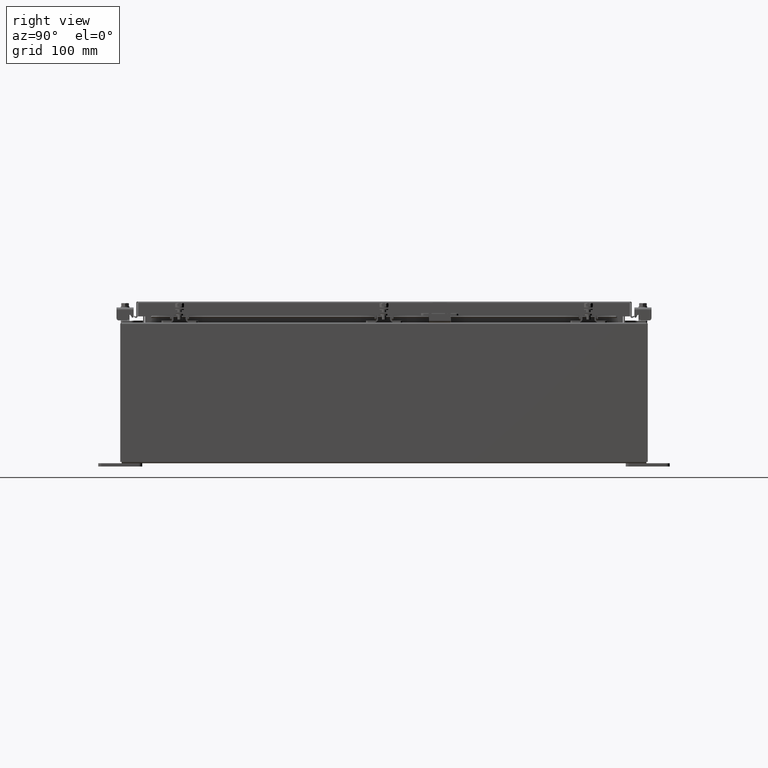
[diagram: clean part render]
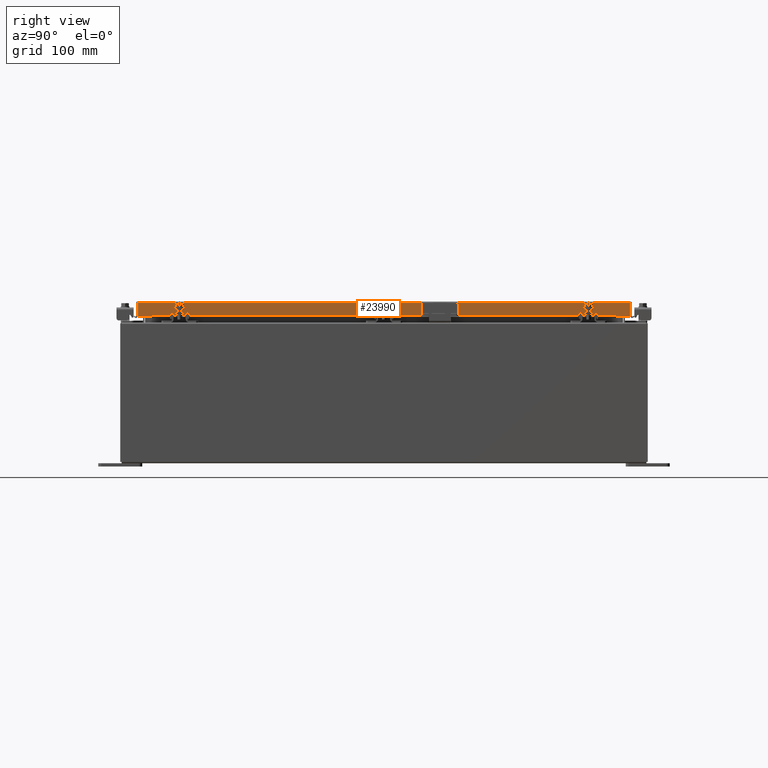
[diagram: same view with one face highlighted and labeled with its STEP entity id]
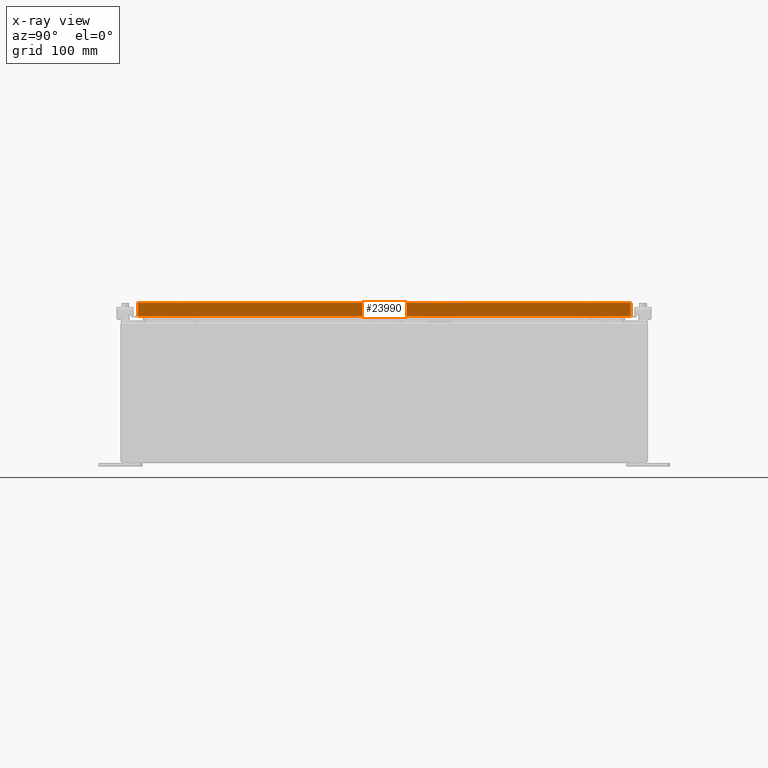
[diagram: x-ray of the same camera — body ghosted, the highlighted face saturated]
A machine part, right view. The second image highlights one B-rep face of the part: STEP entity #23990.
The next image is the same camera in x-ray: the body ghosted, the highlighted face saturated — about 0% of this face is hidden behind the body in this view.
In plain terms, the highlighted planar face has unit normal (1, 0, 0).
Its self-contained STEP definition (entity closure, byte-faithful):
#237 = CARTESIAN_POINT ( 'NONE',  ( 11.07799999999999900, -14.00515786437626900, -0.07469999999999978000 ) ) ;
#403 = VERTEX_POINT ( 'NONE', #26444 ) ;
#430 = EDGE_CURVE ( 'NONE', #1744, #27006, #7934, .T. ) ;
#1276 = VECTOR ( 'NONE', #8702, 39.37007874015748100 ) ;
#1595 = CARTESIAN_POINT ( 'NONE',  ( 11.07800000000000300, -14.09399999999999900, -0.8499999999999996400 ) ) ;
#1744 = VERTEX_POINT ( 'NONE', #35178 ) ;
#2119 = CARTESIAN_POINT ( 'NONE',  ( 11.07799999999999900, 14.00515786437626500, -0.08770000000000007000 ) ) ;
#2319 = DIRECTION ( 'NONE',  ( 0.0000000000000000000, -1.000000000000000000, 0.0000000000000000000 ) ) ;
#2498 = VECTOR ( 'NONE', #3133, 39.37007874015748100 ) ;
#2756 = EDGE_LOOP ( 'NONE', ( #27688, #32825, #24834, #10626, #34264, #29585 ) ) ;
#3133 = DIRECTION ( 'NONE',  ( -2.818880942772360100E-015, -6.982962677686265900E-015, 1.000000000000000000 ) ) ;
#7501 = VECTOR ( 'NONE', #20293, 39.37007874015748100 ) ;
#7934 = LINE ( 'NONE', #1595, #30125 ) ;
#8625 = CARTESIAN_POINT ( 'NONE',  ( 11.07799999999999900, 0.0000000000000000000, 3.148837674004379000E-014 ) ) ;
#8693 = EDGE_CURVE ( 'NONE', #22613, #11767, #18038, .T. ) ;
#8702 = DIRECTION ( 'NONE',  ( 0.0000000000000000000, -1.000000000000000000, 0.0000000000000000000 ) ) ;
#9200 = EDGE_CURVE ( 'NONE', #11767, #403, #31467, .T. ) ;
#10626 = ORIENTED_EDGE ( 'NONE', *, *, #33055, .F. ) ;
#10797 = LINE ( 'NONE', #17373, #1276 ) ;
#11195 = DIRECTION ( 'NONE',  ( 0.0000000000000000000, -1.000000000000000000, 0.0000000000000000000 ) ) ;
#11555 = DIRECTION ( 'NONE',  ( 1.000000000000000000, 0.0000000000000000000, 2.818880942772360100E-015 ) ) ;
#11767 = VERTEX_POINT ( 'NONE', #2119 ) ;
#11802 = FACE_OUTER_BOUND ( 'NONE', #2756, .T. ) ;
#13506 = LINE ( 'NONE', #25414, #22129 ) ;
#17373 = CARTESIAN_POINT ( 'NONE',  ( 11.07800000000000300, -14.09399999999999900, -0.8499999999999996400 ) ) ;
#18038 = LINE ( 'NONE', #29004, #32406 ) ;
#18560 = VERTEX_POINT ( 'NONE', #32954 ) ;
#18691 = EDGE_CURVE ( 'NONE', #18560, #1744, #13506, .T. ) ;
#19055 = CARTESIAN_POINT ( 'NONE',  ( 11.07800000000000300, -14.00515786437626400, -0.8499999999999996400 ) ) ;
#20293 = DIRECTION ( 'NONE',  ( 0.0000000000000000000, -1.000000000000000000, 0.0000000000000000000 ) ) ;
#20494 = DIRECTION ( 'NONE',  ( -2.818880942772360100E-015, -6.982962677686265900E-015, 1.000000000000000000 ) ) ;
#22129 = VECTOR ( 'NONE', #2319, 39.37007874015748100 ) ;
#22169 = AXIS2_PLACEMENT_3D ( 'NONE', #8625, #11555, #31743 ) ;
#22613 = VERTEX_POINT ( 'NONE', #37151 ) ;
#23990 = ADVANCED_FACE ( 'NONE', ( #11802 ), #25977, .T. ) ;
#24834 = ORIENTED_EDGE ( 'NONE', *, *, #18691, .F. ) ;
#25414 = CARTESIAN_POINT ( 'NONE',  ( 11.07799999999999400, 13.25515786437627200, -0.8500000000000018700 ) ) ;
#25977 = PLANE ( 'NONE',  #22169 ) ;
#26444 = CARTESIAN_POINT ( 'NONE',  ( 11.07799999999999900, -14.00515786437626900, -0.08770000000000007000 ) ) ;
#27006 = VERTEX_POINT ( 'NONE', #19055 ) ;
#27688 = ORIENTED_EDGE ( 'NONE', *, *, #30014, .F. ) ;
#29004 = CARTESIAN_POINT ( 'NONE',  ( 11.07799999999999900, 14.00515786437626900, 1.292858714020875700E-013 ) ) ;
#29585 = ORIENTED_EDGE ( 'NONE', *, *, #9200, .T. ) ;
#30014 = EDGE_CURVE ( 'NONE', #27006, #403, #33287, .T. ) ;
#30125 = VECTOR ( 'NONE', #11195, 39.37007874015748100 ) ;
#31467 = LINE ( 'NONE', #31801, #7501 ) ;
#31743 = DIRECTION ( 'NONE',  ( 2.818880942772360100E-015, 0.0000000000000000000, -1.000000000000000000 ) ) ;
#31801 = CARTESIAN_POINT ( 'NONE',  ( 11.07799999999999900, 0.0000000000000000000, -0.08770000000000007000 ) ) ;
#32406 = VECTOR ( 'NONE', #20494, 39.37007874015748100 ) ;
#32825 = ORIENTED_EDGE ( 'NONE', *, *, #430, .F. ) ;
#32954 = CARTESIAN_POINT ( 'NONE',  ( 11.07799999999999400, 13.25515786437626500, -0.8500000000000018700 ) ) ;
#33055 = EDGE_CURVE ( 'NONE', #22613, #18560, #10797, .T. ) ;
#33287 = LINE ( 'NONE', #237, #2498 ) ;
#34264 = ORIENTED_EDGE ( 'NONE', *, *, #8693, .T. ) ;
#35178 = CARTESIAN_POINT ( 'NONE',  ( 11.07799999999999400, -13.25515786437626400, -0.8500000000000018700 ) ) ;
#37151 = CARTESIAN_POINT ( 'NONE',  ( 11.07800000000000300, 14.00515786437627200, -0.8499999999999996400 ) ) ;